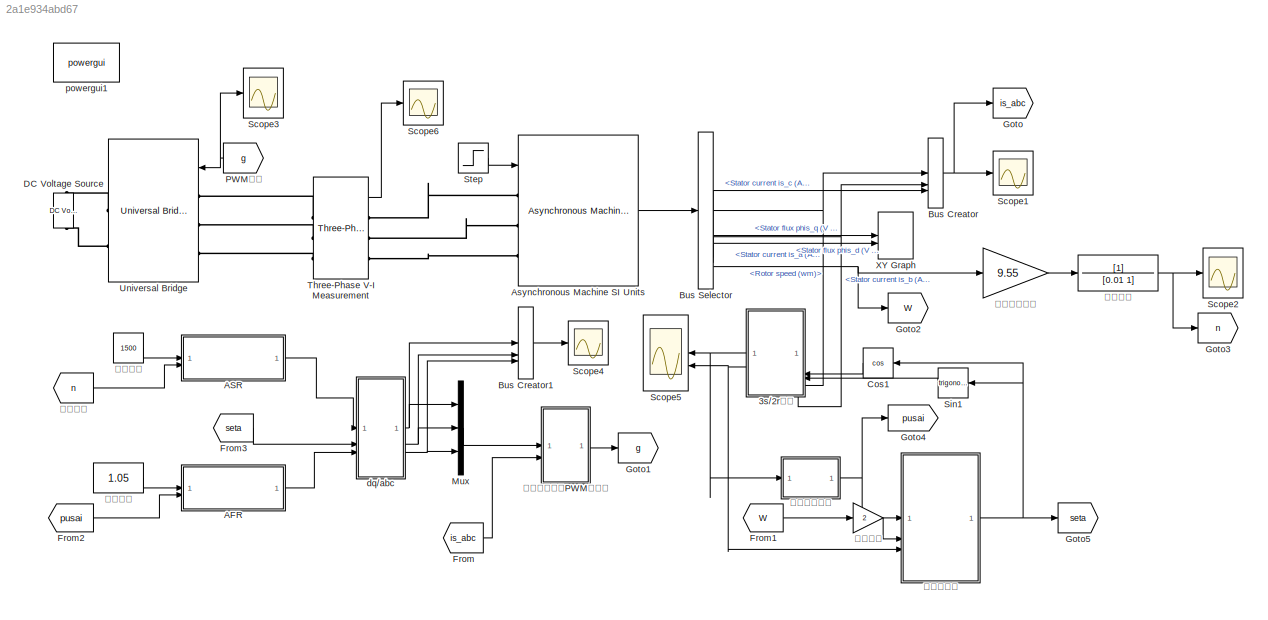
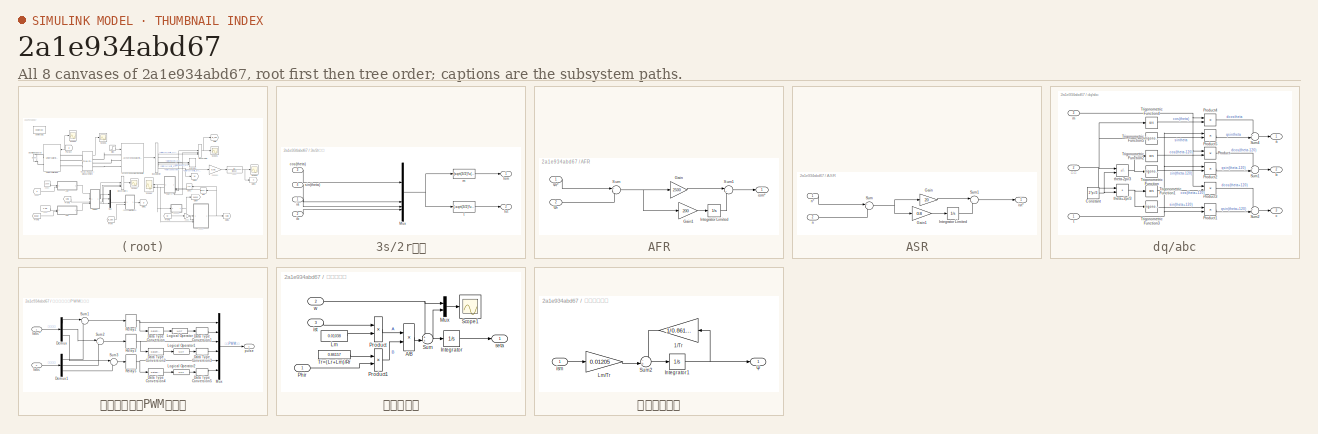
[diagram: thumbnail index - all 8 canvases of the model, root first then tree order]
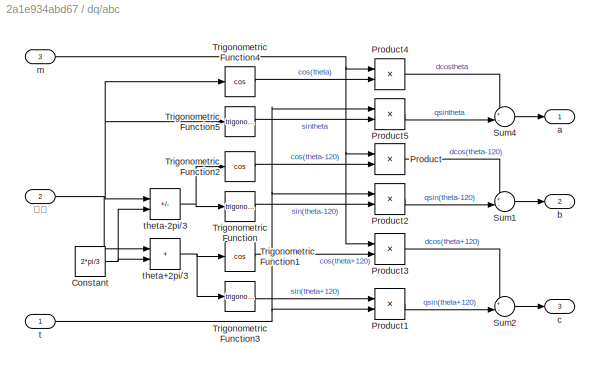
MODEL slx_2a1e934abd67
KIND model
CONFIG AbsTol = auto
CONFIG EnableMultiTasking = off
CONFIG FixedStep = auto
CONFIG MaxStep = auto
CONFIG MinStep = auto
CONFIG RelTol = 1e-3
CONFIG SampleTimeConstraint = Unconstrained
CONFIG SolverName = VariableStepAuto
CONFIG StartTime = 0.0
CONFIG StopTime = 10
BLOCK [SubSystem] 3s//2r变换
BLOCK [Outport] 3s//2r变换/Ism
BLOCK [Outport] 3s//2r变换/Ist
  Port = 2
BLOCK [Mux] 3s//2r变换/Mux
  DisplayOption = bar
BLOCK [Inport] 3s//2r变换/cos(theta)
  Port = 3
BLOCK [Inport] 3s//2r变换/ia
BLOCK [Inport] 3s//2r变换/ib
  Port = 2
BLOCK [Fcn] 3s//2r变换/m
  Expr = (sqrt(3/2)*u(1)+sqrt(1/2)*u(2))*u(3)+sqrt(2)*u(2)*u(4)
BLOCK [Inport] 3s//2r变换/sin(theta)
  Port = 4
BLOCK [Fcn] 3s//2r变换/t
  Expr = (-sqrt(3/2)*u(2)+sqrt(1/2)*u(1))*u(3)+sqrt(2)*u(1)*u(4)
BLOCK [SubSystem] AFR
BLOCK [Gain] AFR/Gain
  Gain = 2500
BLOCK [Gain] AFR/Gain1
  Gain = 200
BLOCK [Integrator] AFR/Integrator Limited
  LimitOutput = on
  LowerSaturationLimit = -100
  UpperSaturationLimit = 100
BLOCK [Sum] AFR/Sum
  Inputs = +-
BLOCK [Sum] AFR/Sum1
  Inputs = |++
BLOCK [Outport] AFR/ism*
BLOCK [Inport] AFR/Ψr
  Port = 2
BLOCK [Inport] AFR/Ψr*
BLOCK [SubSystem] ASR
BLOCK [Gain] ASR/Gain
  Gain = 20
BLOCK [Gain] ASR/Gain1
  Gain = 0.8
BLOCK [Integrator] ASR/Integrator Limited
  LimitOutput = on
  LowerSaturationLimit = -80
  UpperSaturationLimit = 80
BLOCK [Sum] ASR/Sum
  Inputs = +-
BLOCK [Sum] ASR/Sum1
  Inputs = |++
BLOCK [Outport] ASR/ist*
BLOCK [Inport] ASR/n
  Port = 2
BLOCK [Inport] ASR/n*
BLOCK [Reference] Asynchronous Machine SI Units  REF=spsAsynchronousMachineSIUnitsLib/Asynchronous Machine
SI Units
  LibrarySourceBlock = sps_lib/Electrical Machines/Asynchronous Machine\nSI Units
  SourceBlock = spsAsynchronousMachineSIUnitsLib/Asynchronous Machine\nSI Units
  SourceType = Asynchronous Machine
BLOCK [BusCreator] Bus Creator
  DisplayOption = bar
  InheritFromInputs = on
  Inputs = 3
BLOCK [BusCreator] Bus Creator1
  DisplayOption = bar
  InheritFromInputs = on
  Inputs = 3
BLOCK [BusSelector] Bus Selector
  OutputSignals = Stator measurements.Stator current is_a (A),Stator measurements.Stator current is_b (A),Stator measurements.Stator current is_c (A),Stator measurements.Stator flux phis_q (V s),Stator measurements.Stator flux phis_d (V s),Mechanical.Rotor speed (wm)
BLOCK [Trigonometry] Cos1
  NameLocation = top
  Operator = cos
BLOCK [Reference] DC Voltage Source  REF=spsDCVoltageSourceLib/DC Voltage Source
  LibrarySourceBlock = sps_lib/Sources/DC Voltage Source
  NameLocation = right
  SourceBlock = spsDCVoltageSourceLib/DC Voltage Source
  SourceType = DC Voltage Source
BLOCK [From] From
  GotoTag = is_abc
  NameLocation = top
BLOCK [From] From1
  GotoTag = W
BLOCK [From] From2
  GotoTag = pusai
BLOCK [From] From3
  GotoTag = seta
BLOCK [Goto] Goto
  GotoTag = is_abc
BLOCK [Goto] Goto1
  GotoTag = g
BLOCK [Goto] Goto2
  GotoTag = W
BLOCK [Goto] Goto3
  GotoTag = n
BLOCK [Goto] Goto4
  GotoTag = pusai
BLOCK [Goto] Goto5
  GotoTag = seta
BLOCK [Mux] Mux
  DisplayOption = bar
  Inputs = 3
BLOCK [From] PWM信号
  GotoTag = g
BLOCK [Scope] Scope1
  Floating = off
  NumInputPorts = 1
  ScopeSpecificationString = Simulink.scopes.TimeScopeBlockCfg('CurrentConfiguration', extmgr.ConfigurationSet(extmgr.Configuration('Core','General UI',true,'FigureColor',[1 1 1]),extmgr.Configuration('Core','Source UI',true),extmgr.Configuration('Sources','WiredSimulink',true,'DataLoggingVariableName','ScopeData2'),extmgr.Configuration('Visuals','Time Domain',true,'TimeAxisLabels','All','SerializedDisplays',{struct('MinYLimR...<+2357ch>
BLOCK [Scope] Scope2
  Floating = off
  NumInputPorts = 1
  ScopeSpecificationString = Simulink.scopes.TimeScopeBlockCfg('CurrentConfiguration', extmgr.ConfigurationSet(extmgr.Configuration('Core','General UI',true,'FigureColor',[1 1 1]),extmgr.Configuration('Core','Source UI',true),extmgr.Configuration('Sources','WiredSimulink',true,'DataLoggingVariableName','ScopeData4'),extmgr.Configuration('Visuals','Time Domain',true,'TimeAxisLabels','All','SerializedDisplays',{struct('MinYLimR...<+2571ch>
BLOCK [Scope] Scope3
  Floating = off
  NumInputPorts = 1
  ScopeSpecificationString = Simulink.scopes.TimeScopeBlockCfg('CurrentConfiguration', extmgr.ConfigurationSet(extmgr.Configuration('Core','General UI',true,'FigureColor',[1 1 1]),extmgr.Configuration('Core','Source UI',true),extmgr.Configuration('Sources','WiredSimulink',true,'DataLoggingVariableName','ScopeData6'),extmgr.Configuration('Visuals','Time Domain',true,'TimeAxisLabels','All','SerializedDisplays',{struct('MinYLimR...<+2621ch>
BLOCK [Scope] Scope4
  Floating = off
  NumInputPorts = 1
  ScopeSpecificationString = Simulink.scopes.TimeScopeBlockCfg('CurrentConfiguration', extmgr.ConfigurationSet(extmgr.Configuration('Core','General UI',true,'FigureColor',[1 1 1]),extmgr.Configuration('Core','Source UI',true),extmgr.Configuration('Sources','WiredSimulink',true,'DataLoggingVariableName','ScopeData1'),extmgr.Configuration('Visuals','Time Domain',true,'TimeAxisLabels','All','SerializedDisplays',{struct('MinYLimR...<+2385ch>
BLOCK [Scope] Scope5
  Floating = off
  NameLocation = top
  NumInputPorts = 2
  ScopeSpecificationString = Simulink.scopes.TimeScopeBlockCfg('CurrentConfiguration', extmgr.ConfigurationSet(extmgr.Configuration('Core','General UI',true,'FigureColor',[1 1 1]),extmgr.Configuration('Core','Source UI',true),extmgr.Configuration('Sources','WiredSimulink',true,'DataLoggingVariableName','ScopeData5'),extmgr.Configuration('Visuals','Time Domain',true,'TimeAxisLabels','All','SerializedDisplays',{struct('MinYLimR...<+2549ch>
BLOCK [Scope] Scope6
  Floating = off
  NumInputPorts = 1
  ScopeSpecificationString = Simulink.scopes.TimeScopeBlockCfg('CurrentConfiguration', extmgr.ConfigurationSet(extmgr.Configuration('Core','General UI',true,'FigureColor',[1 1 1]),extmgr.Configuration('Core','Source UI',true),extmgr.Configuration('Sources','WiredSimulink',true,'DataLoggingVariableName','ScopeData3'),extmgr.Configuration('Visuals','Time Domain',true,'TimeAxisLabels','All','SerializedDisplays',{struct('MinYLimR...<+2382ch>
BLOCK [Trigonometry] Sin1
  NameLocation = top
BLOCK [Step] Step
  After = 300
  Before = 706
  SampleTime = 0
  Time = 9
BLOCK [Reference] Three-Phase V-I Measurement  REF=spsThreePhaseVIMeasurementLib/Three-Phase
V-I Measurement
  LibrarySourceBlock = sps_lib/Sensors and Measurements/Three-Phase\nV-I Measurement
  SourceBlock = spsThreePhaseVIMeasurementLib/Three-Phase\nV-I Measurement
  SourceType = Three-Phase VI Measurement
BLOCK [Reference] Universal Bridge  REF=spsUniversalBridgeLib/Universal Bridge
  LibrarySourceBlock = sps_lib/Power Electronics/Universal Bridge
  SourceBlock = spsUniversalBridgeLib/Universal Bridge
  SourceType = Universal Bridge
BLOCK [Record] XY Graph
  CompatibilityTag = XY
  FileSettingsInternal = {"entries":[{"content":{"excelSettings":{"content":{},"type":"Streamout.ExcelSettings"}},"type":"Streamout.FileSettingStorage","uuid":""}],"packageUris":["http:\/\/schema.mathworks.com\/mf0\/streamout_blocks\/R2020a"],"version":"1.0"}
  Layout = [1 1]
  SignalsInternal = {"entries":[{"content":{"signals":[{"content":{"blockPath":[],"dimensions":[1],"domain":"","lineColor":"#a2142f","plots":[1],"port":1,"sid":[""],"signalID":6612,"signalName":"<Stator flux phis_q (V s)>"},"type":"RecordBlkView.Signal","uuid":""},{"content":{"blockPath":[],"dimensions":[1],"domain":"","lineColor":"#139fff","plots":[1],"port":2,"sid":[""],"signalID":6616,"signalName":"<Stator flux ph...<+200ch>
  VisualizationBindings = {"xyplotplugin":{"info":[{"series":[{"bindingParametersList":[{"parameter":"X-Axis","signalID":6612,"signalName":"<Stator flux phis_q (V s)>"},{"parameter":"Y-Axis","signalID":6616,"signalName":"<Stator flux phis_d (V s)>"}],"seriesID":52085}],"subplotID":1}]}}
  st = -1
BLOCK [SubSystem] dq//abc
BLOCK [Constant] dq//abc/Constant
  Value = 2*pi/3
BLOCK [Product] dq//abc/Product
BLOCK [Product] dq//abc/Product1
BLOCK [Product] dq//abc/Product2
BLOCK [Product] dq//abc/Product3
BLOCK [Product] dq//abc/Product4
BLOCK [Product] dq//abc/Product5
BLOCK [Sum] dq//abc/Sum1
  Inputs = +-|
BLOCK [Sum] dq//abc/Sum2
  Inputs = +-|
BLOCK [Sum] dq//abc/Sum4
  Inputs = +-|
BLOCK [Trigonometry] dq//abc/Trigonometric Function
BLOCK [Trigonometry] dq//abc/Trigonometric Function1
  Operator = cos
BLOCK [Trigonometry] dq//abc/Trigonometric Function2
  Operator = cos
BLOCK [Trigonometry] dq//abc/Trigonometric Function3
BLOCK [Trigonometry] dq//abc/Trigonometric Function4
  Operator = cos
BLOCK [Trigonometry] dq//abc/Trigonometric Function5
BLOCK [Outport] dq//abc/a
  VectorParamsAs1DForOutWhenUnconnected = off
BLOCK [Outport] dq//abc/b
  Port = 2
  VectorParamsAs1DForOutWhenUnconnected = off
BLOCK [Outport] dq//abc/c
  Port = 3
  VectorParamsAs1DForOutWhenUnconnected = off
BLOCK [Inport] dq//abc/m
  Port = 3
BLOCK [Inport] dq//abc/t
BLOCK [Sum] dq//abc/theta+2pi//3
  IconShape = rectangular
BLOCK [Sum] dq//abc/theta-2pi//3
  IconShape = rectangular
  Inputs = +-
BLOCK [Inport] dq//abc/角度
  Port = 2
BLOCK [Reference] powergui1  REF=sps_lib/powergui
  LibrarySourceBlock = sps_lib/powergui
  Priority = 1
  SourceBlock = sps_lib/powergui
  SourceType = PSB option menu block
BLOCK [From] 实际转速
  GotoTag = n
BLOCK [TransferFcn] 滤波环节
  Denominator = [0.01 1]
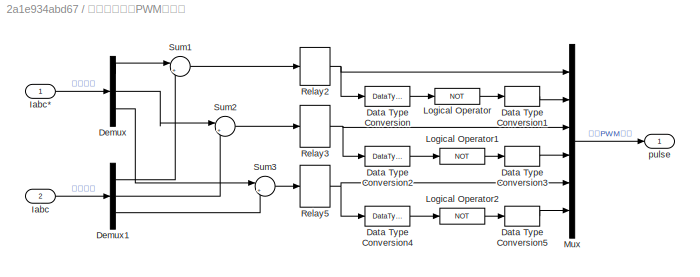
BLOCK [SubSystem] 电流滞环跟踪PWM发生器
BLOCK [DataTypeConversion] 电流滞环跟踪PWM发生器/Data Type Conversion
  RndMeth = Floor
  SaturateOnIntegerOverflow = off
BLOCK [DataTypeConversion] 电流滞环跟踪PWM发生器/Data Type Conversion1
  RndMeth = Floor
  SaturateOnIntegerOverflow = off
BLOCK [DataTypeConversion] 电流滞环跟踪PWM发生器/Data Type Conversion2
  RndMeth = Floor
  SaturateOnIntegerOverflow = off
BLOCK [DataTypeConversion] 电流滞环跟踪PWM发生器/Data Type Conversion3
  RndMeth = Floor
  SaturateOnIntegerOverflow = off
BLOCK [DataTypeConversion] 电流滞环跟踪PWM发生器/Data Type Conversion4
  RndMeth = Floor
  SaturateOnIntegerOverflow = off
BLOCK [DataTypeConversion] 电流滞环跟踪PWM发生器/Data Type Conversion5
  RndMeth = Floor
  SaturateOnIntegerOverflow = off
BLOCK [Demux] 电流滞环跟踪PWM发生器/Demux
  Outputs = 3
BLOCK [Demux] 电流滞环跟踪PWM发生器/Demux1
  Outputs = 3
BLOCK [Inport] 电流滞环跟踪PWM发生器/Iabc
  Port = 2
BLOCK [Inport] 电流滞环跟踪PWM发生器/Iabc*
BLOCK [Logic] 电流滞环跟踪PWM发生器/Logical Operator
  AllPortsSameDT = off
  Inputs = 1
  Operator = NOT
BLOCK [Logic] 电流滞环跟踪PWM发生器/Logical Operator1
  AllPortsSameDT = off
  Inputs = 1
  Operator = NOT
BLOCK [Logic] 电流滞环跟踪PWM发生器/Logical Operator2
  AllPortsSameDT = off
  Inputs = 1
  Operator = NOT
BLOCK [Mux] 电流滞环跟踪PWM发生器/Mux
  DisplayOption = bar
  Inputs = 6
BLOCK [Relay] 电流滞环跟踪PWM发生器/Relay2
  OffSwitchValue = -0.2
  OnSwitchValue = 0.2
  ZeroCross = off
BLOCK [Relay] 电流滞环跟踪PWM发生器/Relay3
  OffSwitchValue = -0.2
  OnSwitchValue = 0.2
  ZeroCross = off
BLOCK [Relay] 电流滞环跟踪PWM发生器/Relay5
  OffSwitchValue = -0.2
  OnSwitchValue = 0.2
  ZeroCross = off
BLOCK [Sum] 电流滞环跟踪PWM发生器/Sum1
  Inputs = |+-
BLOCK [Sum] 电流滞环跟踪PWM发生器/Sum2
  Inputs = |+-
BLOCK [Sum] 电流滞环跟踪PWM发生器/Sum3
  Inputs = |+-
BLOCK [Outport] 电流滞环跟踪PWM发生器/pulse
  VectorParamsAs1DForOutWhenUnconnected = off
BLOCK [Gain] 电角速度
  Gain = 2
BLOCK [Constant] 给定磁链
  Value = 1.05
BLOCK [Constant] 给定转速
  Value = 1500
BLOCK [SubSystem] 角度的计算
  NameLocation = top
BLOCK [Product] 角度的计算/A//B
  Inputs = */
BLOCK [Integrator] 角度的计算/Integrator
BLOCK [Constant] 角度的计算/Lm
  Value = 0.01038
BLOCK [Mux] 角度的计算/Mux
  DisplayOption = bar
  Inputs = 2
BLOCK [Inport] 角度的计算/Phir
BLOCK [Product] 角度的计算/Product
BLOCK [Product] 角度的计算/Product1
BLOCK [Scope] 角度的计算/Scope1
  Floating = off
  NumInputPorts = 1
  ScopeSpecificationString = Simulink.scopes.TimeScopeBlockCfg('CurrentConfiguration', extmgr.ConfigurationSet(extmgr.Configuration('Core','General UI',true,'FigureColor',[1 1 1]),extmgr.Configuration('Core','Source UI',true),extmgr.Configuration('Sources','WiredSimulink',true,'DataLoggingVariableName','ScopeData1'),extmgr.Configuration('Visuals','Time Domain',true,'TimeAxisLabels','All','SerializedDisplays',{struct('MinYLimR...<+2387ch>
BLOCK [Sum] 角度的计算/Sum
  Inputs = ++|
BLOCK [Constant] 角度的计算/Tr=(Lr+Lm)//Rr
  Value = 0.86157
BLOCK [Inport] 角度的计算/ist
  Port = 3
BLOCK [Outport] 角度的计算/seta
  VectorParamsAs1DForOutWhenUnconnected = off
BLOCK [Inport] 角度的计算/w
  Port = 2
BLOCK [Gain] 角速度变转速
  Gain = 9.55
BLOCK [SubSystem] 转子磁链计算
  NameLocation = top
BLOCK [Gain] 转子磁链计算/1//Tr
  Gain = 1/0.86157
BLOCK [Integrator] 转子磁链计算/Integrator1
  InitialCondition = 1e-5
BLOCK [Gain] 转子磁链计算/Lm//Tr
  Gain = 0.01205
BLOCK [Sum] 转子磁链计算/Sum2
  Inputs = -+|
BLOCK [Inport] 转子磁链计算/ism
BLOCK [Outport] 转子磁链计算/Ψ
  VectorParamsAs1DForOutWhenUnconnected = off
NET 3s//2r变换/Mux:1 -> 3s//2r变换/m:1, 3s//2r变换/t:1
LINE 3s//2r变换/cos(theta):1 -> 3s//2r变换/Mux:1
LINE 3s//2r变换/ia:1 -> 3s//2r变换/Mux:3
LINE 3s//2r变换/ib:1 -> 3s//2r变换/Mux:4
LINE 3s//2r变换/m:1 -> 3s//2r变换/Ism:1
LINE 3s//2r变换/sin(theta):1 -> 3s//2r变换/Mux:2
LINE 3s//2r变换/t:1 -> 3s//2r变换/Ist:1
NET 3s//2r变换:1 -> Scope5:1, 转子磁链计算:1
NET 3s//2r变换:2 -> Scope5:2, 角度的计算:3
LINE AFR/Gain1:1 -> AFR/Integrator Limited:1
LINE AFR/Gain:1 -> AFR/Sum1:1
LINE AFR/Integrator Limited:1 -> AFR/Sum1:2
LINE AFR/Sum1:1 -> AFR/ism*:1
NET AFR/Sum:1 -> AFR/Gain1:1, AFR/Gain:1
LINE AFR/Ψr*:1 -> AFR/Sum:1
LINE AFR/Ψr:1 -> AFR/Sum:2
LINE AFR:1 -> dq//abc:3
LINE ASR/Gain1:1 -> ASR/Integrator Limited:1
LINE ASR/Gain:1 -> ASR/Sum1:1
LINE ASR/Integrator Limited:1 -> ASR/Sum1:2
LINE ASR/Sum1:1 -> ASR/ist*:1
NET ASR/Sum:1 -> ASR/Gain1:1, ASR/Gain:1
LINE ASR/n*:1 -> ASR/Sum:1
LINE ASR/n:1 -> ASR/Sum:2
LINE ASR:1 -> dq//abc:1
LINE Asynchronous Machine SI Units:1 -> Bus Selector:1
LINE Bus Creator1:1 -> Scope4:1
NET Bus Creator:1 -> Goto:1, Scope1:1
NET Bus Selector:1 -> 3s//2r变换:1, Bus Creator:1
NET Bus Selector:2 -> 3s//2r变换:2, Bus Creator:2
LINE Bus Selector:3 -> Bus Creator:3
LINE Bus Selector:4 -> XY Graph:1
LINE Bus Selector:5 -> XY Graph:2
NET Bus Selector:6 -> Goto2:1, 角速度变转速:1
LINE Cos1:1 -> 3s//2r变换:3
LINE From1:1 -> 电角速度:1
LINE From2:1 -> AFR:2
LINE From3:1 -> dq//abc:2
LINE From:1 -> 电流滞环跟踪PWM发生器:2
LINE Mux:1 -> 电流滞环跟踪PWM发生器:1
NET PWM信号:1 -> Scope3:1, Universal Bridge:1
LINE Sin1:1 -> 3s//2r变换:4
LINE Step:1 -> Asynchronous Machine SI Units:1
LINE Three-Phase V-I Measurement:1 -> Scope6:1
NET dq//abc/Constant:1 -> dq//abc/theta+2pi//3:2, dq//abc/theta-2pi//3:2
LINE dq//abc/Product1:1 -> dq//abc/Sum2:2
LINE dq//abc/Product2:1 -> dq//abc/Sum1:2
LINE dq//abc/Product3:1 -> dq//abc/Sum2:1
LINE dq//abc/Product4:1 -> dq//abc/Sum4:1
LINE dq//abc/Product5:1 -> dq//abc/Sum4:2
LINE dq//abc/Product:1 -> dq//abc/Sum1:1
LINE dq//abc/Sum1:1 -> dq//abc/b:1
LINE dq//abc/Sum2:1 -> dq//abc/c:1
LINE dq//abc/Sum4:1 -> dq//abc/a:1
LINE dq//abc/Trigonometric Function1:1 -> dq//abc/Product3:2
LINE dq//abc/Trigonometric Function2:1 -> dq//abc/Product:2
LINE dq//abc/Trigonometric Function3:1 -> dq//abc/Product1:1
LINE dq//abc/Trigonometric Function4:1 -> dq//abc/Product4:2
LINE dq//abc/Trigonometric Function5:1 -> dq//abc/Product5:2
LINE dq//abc/Trigonometric Function:1 -> dq//abc/Product2:2
NET dq//abc/m:1 -> dq//abc/Product3:1, dq//abc/Product4:1, dq//abc/Product:1
NET dq//abc/t:1 -> dq//abc/Product1:2, dq//abc/Product2:1, dq//abc/Product5:1
NET dq//abc/theta+2pi//3:1 -> dq//abc/Trigonometric Function1:1, dq//abc/Trigonometric Function3:1
NET dq//abc/theta-2pi//3:1 -> dq//abc/Trigonometric Function2:1, dq//abc/Trigonometric Function:1
NET dq//abc/角度:1 -> dq//abc/Trigonometric Function4:1, dq//abc/Trigonometric Function5:1, dq//abc/theta+2pi//3:1, dq//abc/theta-2pi//3:1
NET dq//abc:1 -> Bus Creator1:1, Mux:1
NET dq//abc:2 -> Bus Creator1:2, Mux:2
NET dq//abc:3 -> Bus Creator1:3, Mux:3
LINE 实际转速:1 -> ASR:2
NET 滤波环节:1 -> Goto3:1, Scope2:1
LINE 电流滞环跟踪PWM发生器/Data Type Conversion1:1 -> 电流滞环跟踪PWM发生器/Mux:2
LINE 电流滞环跟踪PWM发生器/Data Type Conversion2:1 -> 电流滞环跟踪PWM发生器/Logical Operator1:1
LINE 电流滞环跟踪PWM发生器/Data Type Conversion3:1 -> 电流滞环跟踪PWM发生器/Mux:4
LINE 电流滞环跟踪PWM发生器/Data Type Conversion4:1 -> 电流滞环跟踪PWM发生器/Logical Operator2:1
LINE 电流滞环跟踪PWM发生器/Data Type Conversion5:1 -> 电流滞环跟踪PWM发生器/Mux:6
LINE 电流滞环跟踪PWM发生器/Data Type Conversion:1 -> 电流滞环跟踪PWM发生器/Logical Operator:1
LINE 电流滞环跟踪PWM发生器/Demux1:1 -> 电流滞环跟踪PWM发生器/Sum1:2
LINE 电流滞环跟踪PWM发生器/Demux1:2 -> 电流滞环跟踪PWM发生器/Sum2:2
LINE 电流滞环跟踪PWM发生器/Demux1:3 -> 电流滞环跟踪PWM发生器/Sum3:2
LINE 电流滞环跟踪PWM发生器/Demux:1 -> 电流滞环跟踪PWM发生器/Sum1:1
LINE 电流滞环跟踪PWM发生器/Demux:2 -> 电流滞环跟踪PWM发生器/Sum2:1
LINE 电流滞环跟踪PWM发生器/Demux:3 -> 电流滞环跟踪PWM发生器/Sum3:1
LINE 电流滞环跟踪PWM发生器/Iabc*:1 -> 电流滞环跟踪PWM发生器/Demux:1
LINE 电流滞环跟踪PWM发生器/Iabc:1 -> 电流滞环跟踪PWM发生器/Demux1:1
LINE 电流滞环跟踪PWM发生器/Logical Operator1:1 -> 电流滞环跟踪PWM发生器/Data Type Conversion3:1
LINE 电流滞环跟踪PWM发生器/Logical Operator2:1 -> 电流滞环跟踪PWM发生器/Data Type Conversion5:1
LINE 电流滞环跟踪PWM发生器/Logical Operator:1 -> 电流滞环跟踪PWM发生器/Data Type Conversion1:1
LINE 电流滞环跟踪PWM发生器/Mux:1 -> 电流滞环跟踪PWM发生器/pulse:1
NET 电流滞环跟踪PWM发生器/Relay2:1 -> 电流滞环跟踪PWM发生器/Data Type Conversion:1, 电流滞环跟踪PWM发生器/Mux:1
NET 电流滞环跟踪PWM发生器/Relay3:1 -> 电流滞环跟踪PWM发生器/Data Type Conversion2:1, 电流滞环跟踪PWM发生器/Mux:3
NET 电流滞环跟踪PWM发生器/Relay5:1 -> 电流滞环跟踪PWM发生器/Data Type Conversion4:1, 电流滞环跟踪PWM发生器/Mux:5
LINE 电流滞环跟踪PWM发生器/Sum1:1 -> 电流滞环跟踪PWM发生器/Relay2:1
LINE 电流滞环跟踪PWM发生器/Sum2:1 -> 电流滞环跟踪PWM发生器/Relay3:1
LINE 电流滞环跟踪PWM发生器/Sum3:1 -> 电流滞环跟踪PWM发生器/Relay5:1
LINE 电流滞环跟踪PWM发生器:1 -> Goto1:1
LINE 电角速度:1 -> 角度的计算:2
LINE 给定磁链:1 -> AFR:1
LINE 给定转速:1 -> ASR:1
LINE 角度的计算/A//B:1 -> 角度的计算/Sum:2
LINE 角度的计算/Integrator:1 -> 角度的计算/seta:1
LINE 角度的计算/Lm:1 -> 角度的计算/Product:2
LINE 角度的计算/Mux:1 -> 角度的计算/Scope1:1
LINE 角度的计算/Phir:1 -> 角度的计算/Product1:2
LINE 角度的计算/Product1:1 -> 角度的计算/A//B:2
LINE 角度的计算/Product:1 -> 角度的计算/A//B:1
NET 角度的计算/Sum:1 -> 角度的计算/Integrator:1, 角度的计算/Mux:2
LINE 角度的计算/Tr=(Lr+Lm)//Rr:1 -> 角度的计算/Product1:1
LINE 角度的计算/ist:1 -> 角度的计算/Product:1
NET 角度的计算/w:1 -> 角度的计算/Mux:1, 角度的计算/Sum:1
NET 角度的计算:1 -> Cos1:1, Goto5:1, Sin1:1
LINE 角速度变转速:1 -> 滤波环节:1
LINE 转子磁链计算/1//Tr:1 -> 转子磁链计算/Sum2:1
NET 转子磁链计算/Integrator1:1 -> 转子磁链计算/1//Tr:1, 转子磁链计算/Ψ:1
LINE 转子磁链计算/Lm//Tr:1 -> 转子磁链计算/Sum2:2
LINE 转子磁链计算/Sum2:1 -> 转子磁链计算/Integrator1:1
LINE 转子磁链计算/ism:1 -> 转子磁链计算/Lm//Tr:1
NET 转子磁链计算:1 -> Goto4:1, 角度的计算:1
PLINE Asynchronous Machine SI Units:LConn1 -- Three-Phase V-I Measurement:RConn1
PLINE Asynchronous Machine SI Units:LConn2 -- Three-Phase V-I Measurement:RConn2
PLINE Asynchronous Machine SI Units:LConn3 -- Three-Phase V-I Measurement:RConn3
PLINE DC Voltage Source:LConn1 -- Universal Bridge:RConn2
PLINE DC Voltage Source:RConn1 -- Universal Bridge:RConn1
PLINE Three-Phase V-I Measurement:LConn1 -- Universal Bridge:LConn1
PLINE Three-Phase V-I Measurement:LConn2 -- Universal Bridge:LConn2
PLINE Three-Phase V-I Measurement:LConn3 -- Universal Bridge:LConn3
note: NET lines group one-source signal fan-out (src -> all destinations, sorted); 1:1 wires keep LINE
